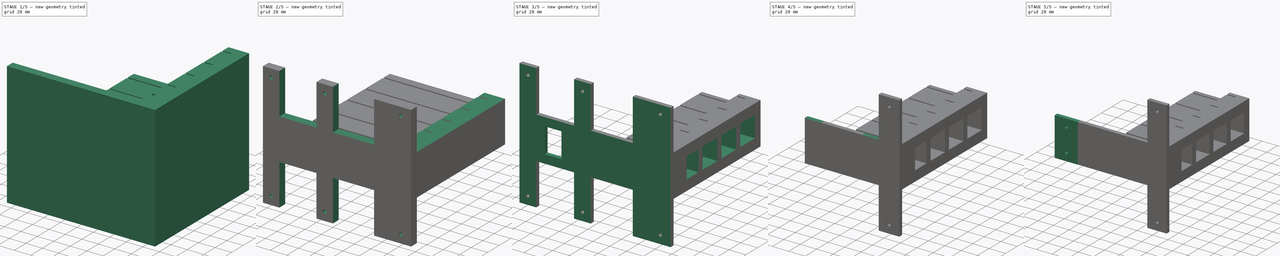
[diagram: build sequence overview — one tinted view per stage of 5, left to right]
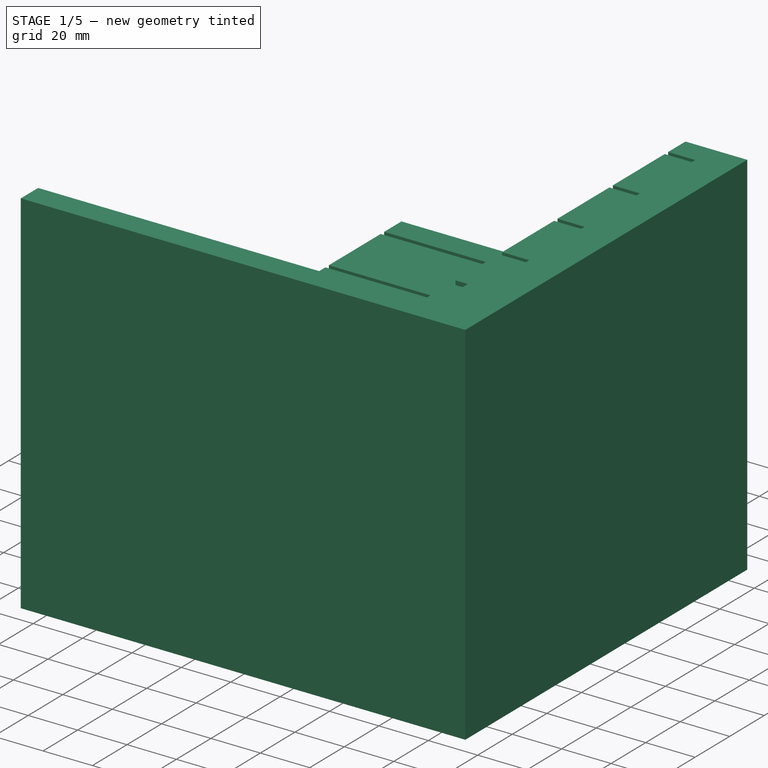
[diagram: stage 1 of 5 — iso view after this stage's code; geometry added in this stage tinted green]
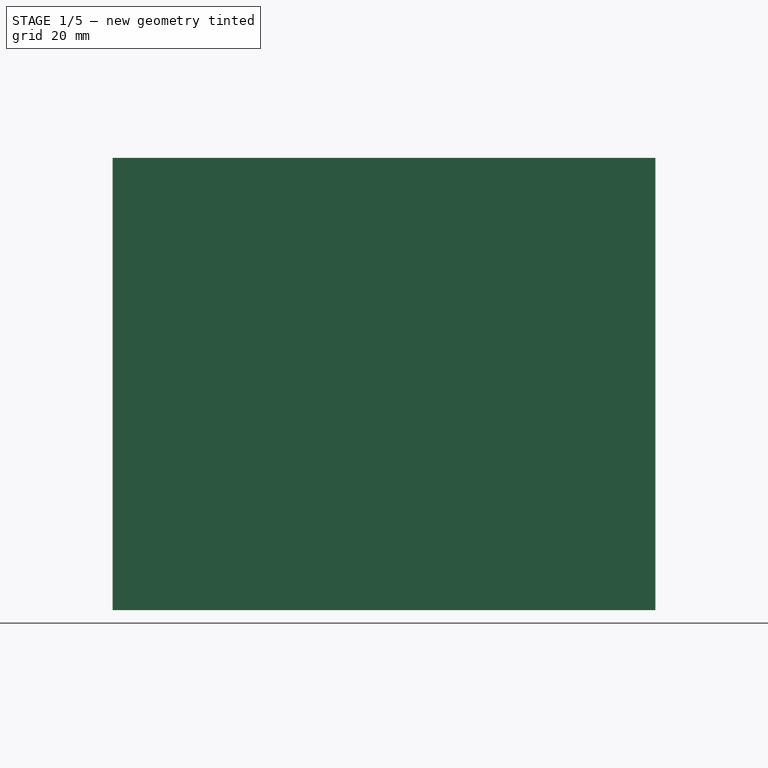
[diagram: stage 1 of 5 — front view after this stage's code; geometry added in this stage tinted green]
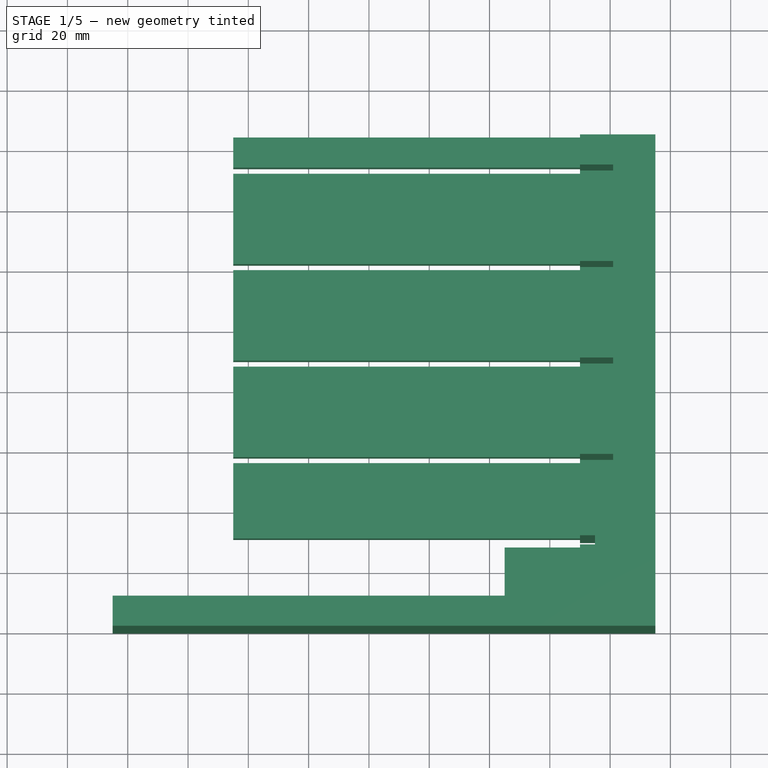
[diagram: stage 1 of 5 — top view after this stage's code; geometry added in this stage tinted green]
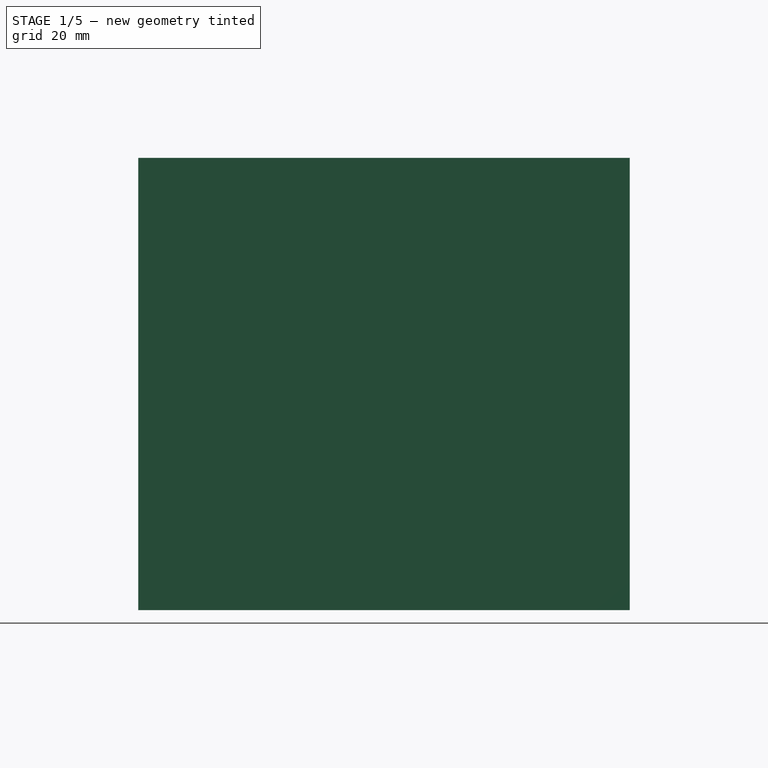
[diagram: stage 1 of 5 — right view after this stage's code; geometry added in this stage tinted green]
FCSTD DOCUMENT  (FreeCAD 0.19R24291 (Git))
Label: awe3_Final
License: All rights reserved
LicenseURL: http://en.wikipedia.org/wiki/All_rights_reserved
objects: Sketcher::SketchObject×18, PartDesign::Pocket×14, PartDesign::Pad×4, PartDesign::Body×1
note: 55 computed .brp shape members not serialized (recipe doc carries the construction recipe); baked Part::Feature solids carry a one-line shape summary decoded from their .brp

FEATURE [Sketcher::SketchObject] Sketch
  FullyConstrained = true
  MapMode = 5
  Support = -> [XY_Plane]
  sketch-geometry (26):
    g0: LineSegment StartX=-75 StartY=0 StartZ=0 EndX=75 EndY=0 EndZ=0
    g1: LineSegment StartX=-75 StartY=0 StartZ=0 EndX=-75 EndY=10 EndZ=0
    g2: LineSegment StartX=-75 StartY=10 StartZ=0 EndX=25 EndY=10 EndZ=0
    g3: LineSegment StartX=25 StartY=10 StartZ=0 EndX=25 EndY=27 EndZ=0
    g4: LineSegment StartX=25 StartY=27 StartZ=0 EndX=55 EndY=27 EndZ=0
    g5: LineSegment StartX=55 StartY=27 StartZ=0 EndX=55 EndY=30 EndZ=0
    g6: LineSegment StartX=55 StartY=30 StartZ=0 EndX=-65 EndY=30 EndZ=0
    g7: LineSegment StartX=-65 StartY=30 StartZ=0 EndX=-65 EndY=55 EndZ=0
    g8: LineSegment StartX=-65 StartY=55 StartZ=0 EndX=55 EndY=55 EndZ=0
    g9: LineSegment StartX=55 StartY=55 StartZ=0 EndX=55 EndY=57 EndZ=0
    g10: LineSegment StartX=55 StartY=57 StartZ=0 EndX=-65 EndY=57 EndZ=0
    g11: LineSegment StartX=-65 StartY=57 StartZ=0 EndX=-65 EndY=87 EndZ=0
    g12: LineSegment StartX=-65 StartY=87 StartZ=0 EndX=55 EndY=87 EndZ=0
    g13: LineSegment StartX=55 StartY=87 StartZ=0 EndX=55 EndY=89 EndZ=0
    g14: LineSegment StartX=55 StartY=89 StartZ=0 EndX=-65 EndY=89 EndZ=0
    g15: LineSegment StartX=-65 StartY=89 StartZ=0 EndX=-65 EndY=119 EndZ=0
    g16: LineSegment StartX=-65 StartY=119 StartZ=0 EndX=55 EndY=119 EndZ=0
    g17: LineSegment StartX=55 StartY=119 StartZ=0 EndX=55 EndY=121 EndZ=0
    g18: LineSegment StartX=55 StartY=121 StartZ=0 EndX=-65 EndY=121 EndZ=0
    g19: LineSegment StartX=-65 StartY=121 StartZ=0 EndX=-65 EndY=151 EndZ=0
    g20: LineSegment StartX=-65 StartY=151 StartZ=0 EndX=55 EndY=151 EndZ=0
    g21: LineSegment StartX=55 StartY=151 StartZ=0 EndX=55 EndY=153 EndZ=0
    g22: LineSegment StartX=55 StartY=153 StartZ=0 EndX=-65 EndY=153 EndZ=0
    g23: LineSegment StartX=-65 StartY=153 StartZ=0 EndX=-65 EndY=163 EndZ=0
    g24: LineSegment StartX=-65 StartY=163 StartZ=0 EndX=75 EndY=163 EndZ=0
    g25: LineSegment StartX=75 StartY=163 StartZ=0 EndX=75 EndY=0 EndZ=0
  constraints (77):
    c: PointOnObject(g0,g-1)
    c: DistanceX(g0,g0) = 150
    c: Symmetric(g0,g0,g-1)
    c: Coincident(g1,g0)
    c: Vertical(g1)
    c: DistanceY(g1,g1) = 10
    c: Coincident(g2,g1)
    c: Horizontal(g2)
    c: DistanceX(g2,g2) = 100
    c: Coincident(g3,g2)
    c: Vertical(g3)
    c: DistanceY(g3,g3) = 17
    c: Coincident(g4,g3)
    c: Horizontal(g4)
    c: DistanceX(g4,g4) = 30
    c: Coincident(g5,g4)
    c: Vertical(g5)
    c: DistanceY(g5,g5) = 3
    c: Coincident(g6,g5)
    c: Horizontal(g6)
    c: Coincident(g7,g6)
    c: Vertical(g7)
    c: DistanceY(g7,g7) = 25
    c: DistanceX(g6,g6) = 120
    c: Coincident(g8,g7)
    c: Horizontal(g8)
    c: Equal(g8,g6)
    c: Coincident(g9,g8)
    c: Vertical(g9)
    c: DistanceY(g9,g9) = 2
    c: Coincident(g10,g9)
    c: Horizontal(g10)
    c: Equal(g10,g8)
    c: Coincident(g11,g10)
    c: Vertical(g11)
    c: DistanceY(g11,g11) = 30
    c: Coincident(g12,g11)
    c: Horizontal(g12)
    c: Equal(g12,g10)
    c: Coincident(g13,g12)
    c: Vertical(g13)
    c: Equal(g13,g9)
    c: Coincident(g14,g13)
    c: Horizontal(g14)
    c: Equal(g14,g12)
    c: Coincident(g15,g14)
    c: Vertical(g15)
    c: Equal(g15,g11)
    c: Coincident(g16,g15)
    c: Horizontal(g16)
    c: Equal(g16,g14)
    c: Coincident(g17,g16)
    c: Vertical(g17)
    c: Equal(g17,g13)
    c: Coincident(g18,g17)
    c: Horizontal(g18)
    c: Equal(g18,g16)
    c: Coincident(g19,g18)
    c: Vertical(g19)
    c: Equal(g19,g15)
    c: Coincident(g20,g19)
    c: Horizontal(g20)
    c: Equal(g20,g18)
    c: Coincident(g21,g20)
    c: Vertical(g21)
    c: Equal(g21,g17)
    c: Coincident(g22,g21)
    c: Horizontal(g22)
    c: Equal(g22,g20)
    c: Coincident(g23,g22)
    c: Vertical(g23)
    c: Coincident(g24,g23)
    c: Horizontal(g24)
    c: DistanceY(g23,g23) = 10
    c: DistanceX(g24,g24) = 140
    c: Coincident(g25,g24)
    c: Coincident(g25,g0)
FEATURE [PartDesign::Pad] Pad
  Direction = (1,1,1)
  Length = 30
  Length2 = 100
  Profile = -> Sketch
  Type = 0
FEATURE [Sketcher::SketchObject] Sketch001
  FullyConstrained = true
  MapMode = 5
  Placement = pos=(75,6.8e-15,0) rot=(0.57735,0.57735,0.57735;2.0944rad)
  Support = -> [Pad]
  sketch-geometry (4):
    g0: LineSegment StartX=0 StartY=90 StartZ=0 EndX=10 EndY=90 EndZ=0
    g1: LineSegment StartX=0 StartY=90 StartZ=0 EndX=0 EndY=-60 EndZ=0
    g2: LineSegment StartX=10 StartY=90 StartZ=0 EndX=10 EndY=-60 EndZ=0
    g3: LineSegment StartX=10 StartY=-60 StartZ=0 EndX=0 EndY=-60 EndZ=0
  constraints (12):
    c: PointOnObject(g0,g-2)
    c: Horizontal(g0)
    c: DistanceX(g0,g0) = 10
    c: Coincident(g1,g0)
    c: Vertical(g1)
    c: Coincident(g2,g0)
    c: Vertical(g2)
    c: Coincident(g3,g2)
    c: Coincident(g3,g1)
    c: Horizontal(g3)
    c: DistanceY(g1,g1) = 150
    c: DistanceY(g-1,g0) = 90
FEATURE [PartDesign::Pad] Pad001
  BaseFeature = -> Pad
  Direction = (1,1,1)
  Length = 180
  Length2 = 100
  Profile = -> Sketch001
  Reversed = true
  Type = 0
FEATURE [Sketcher::SketchObject] Sketch002
  FullyConstrained = true
  MapMode = 5
  Placement = pos=(0,10,0) rot=(0,0.707107,0.707107;3.14159rad)
  Support = -> [Pad001]
  sketch-geometry (4):
    g0: LineSegment StartX=-75 StartY=90 StartZ=0 EndX=-75 EndY=-60 EndZ=0
    g1: LineSegment StartX=-75 StartY=-60 StartZ=0 EndX=-50 EndY=-60 EndZ=0
    g2: LineSegment StartX=-50 StartY=-60 StartZ=0 EndX=-50 EndY=90 EndZ=0
    g3: LineSegment StartX=-50 StartY=90 StartZ=0 EndX=-75 EndY=90 EndZ=0
  constraints (12):
    c: Vertical(g0)
    c: Coincident(g1,g0)
    c: Horizontal(g1)
    c: Coincident(g2,g1)
    c: Vertical(g2)
    c: Coincident(g3,g2)
    c: Coincident(g3,g0)
    c: Horizontal(g3)
    c: DistanceY(g0,g0) = 150
    c: DistanceX(g3,g3) = 25
    c: Distance(g-1,g1) = 60
    c: Distance(g-1,g0) = 75
FEATURE [PartDesign::Pad] Pad002
  BaseFeature = -> Pad001
  Direction = (1,1,1)
  Length = 153
  Length2 = 100
  Profile = -> Sketch002
  Type = 0
FEATURE [Sketcher::SketchObject] Sketch003
  FullyConstrained = true
  MapMode = 5
  Placement = pos=(0,1.98e-14,90) rot=(0,0,1;0rad)
  Support = -> [Pad002]
  sketch-geometry (20):
    g0: LineSegment StartX=50 StartY=27 StartZ=0 EndX=55 EndY=27 EndZ=0
    g1: LineSegment StartX=55 StartY=27 StartZ=0 EndX=55 EndY=30 EndZ=0
    g2: LineSegment StartX=55 StartY=30 StartZ=0 EndX=50 EndY=30 EndZ=0
    g3: LineSegment StartX=50 StartY=30 StartZ=0 EndX=50 EndY=27 EndZ=0
    g4: LineSegment StartX=50 StartY=57 StartZ=0 EndX=61 EndY=57 EndZ=0
    g5: LineSegment StartX=61 StartY=57 StartZ=0 EndX=61 EndY=55 EndZ=0
    g6: LineSegment StartX=61 StartY=55 StartZ=0 EndX=50 EndY=55 EndZ=0
    g7: LineSegment StartX=50 StartY=55 StartZ=0 EndX=50 EndY=57 EndZ=0
    g8: LineSegment StartX=50 StartY=89 StartZ=0 EndX=61 EndY=89 EndZ=0
    g9: LineSegment StartX=61 StartY=89 StartZ=0 EndX=61 EndY=87 EndZ=0
    g10: LineSegment StartX=61 StartY=87 StartZ=0 EndX=50 EndY=87 EndZ=0
    g11: LineSegment StartX=50 StartY=87 StartZ=0 EndX=50 EndY=89 EndZ=0
    g12: LineSegment StartX=50 StartY=121 StartZ=0 EndX=61 EndY=121 EndZ=0
    g13: LineSegment StartX=61 StartY=121 StartZ=0 EndX=61 EndY=119 EndZ=0
    g14: LineSegment StartX=61 StartY=119 StartZ=0 EndX=50 EndY=119 EndZ=0
    g15: LineSegment StartX=50 StartY=119 StartZ=0 EndX=50 EndY=121 EndZ=0
    g16: LineSegment StartX=50 StartY=153 StartZ=0 EndX=61 EndY=153 EndZ=0
    g17: LineSegment StartX=61 StartY=153 StartZ=0 EndX=61 EndY=151 EndZ=0
    g18: LineSegment StartX=61 StartY=151 StartZ=0 EndX=50 EndY=151 EndZ=0
    g19: LineSegment StartX=50 StartY=151 StartZ=0 EndX=50 EndY=153 EndZ=0
  constraints (60):
    c: Horizontal(g0)
    c: Distance(g0,g-1) = 27
    c: Distance(g0,g-2) = 50
    c: Coincident(g1,g0)
    c: Vertical(g1)
    c: Coincident(g2,g1)
    c: Horizontal(g2)
    c: Coincident(g3,g2)
    c: Coincident(g3,g0)
    c: DistanceY(g1,g1) = 3
    c: DistanceX(g2,g2) = 5
    c: DistanceX(g0,g0) = 5
    c: Coincident(g4,g5)
    c: Coincident(g5,g6)
    c: Coincident(g6,g7)
    c: Coincident(g7,g4)
    c: Horizontal(g4)
    c: Horizontal(g6)
    c: Vertical(g5)
    c: Vertical(g7)
    c: Coincident(g8,g9)
    c: Coincident(g9,g10)
    c: Coincident(g10,g11)
    c: Coincident(g11,g8)
    c: Horizontal(g8)
    c: Horizontal(g10)
    c: Vertical(g9)
    c: Vertical(g11)
    c: Coincident(g12,g13)
    c: Coincident(g13,g14)
    c: Coincident(g14,g15)
    c: Coincident(g15,g12)
    c: Horizontal(g12)
    c: Horizontal(g14)
    c: Vertical(g13)
    c: Vertical(g15)
    c: Coincident(g16,g17)
    c: Coincident(g17,g18)
    c: Coincident(g18,g19)
    c: Coincident(g19,g16)
    c: Horizontal(g16)
    c: Horizontal(g18)
    c: Vertical(g17)
    c: Vertical(g19)
    c: Equal(g10,g4)
    c: Equal(g14,g8)
    c: Equal(g18,g12)
    c: Distance(g6,g-2) = 50
    c: Distance(g10,g-2) = 50
    c: Distance(g14,g-2) = 50
    c: Distance(g18,g-2) = 50
    c: DistanceY(g5,g5) = 2
    c: Distance(g5,g-1) = 55
    c: Distance(g9,g4) = 30
    c: Equal(g13,g5)
    c: Equal(g17,g5)
    c: Equal(g9,g5)
    c: Distance(g17,g12) = 30
    c: Distance(g13,g8) = 30
    c: DistanceX(g6,g6) = 11
FEATURE [PartDesign::Pocket] Pocket
  BaseFeature = -> Pad002
  Length = 150
  Length2 = 100
  Profile = -> Sketch003
  Type = 0
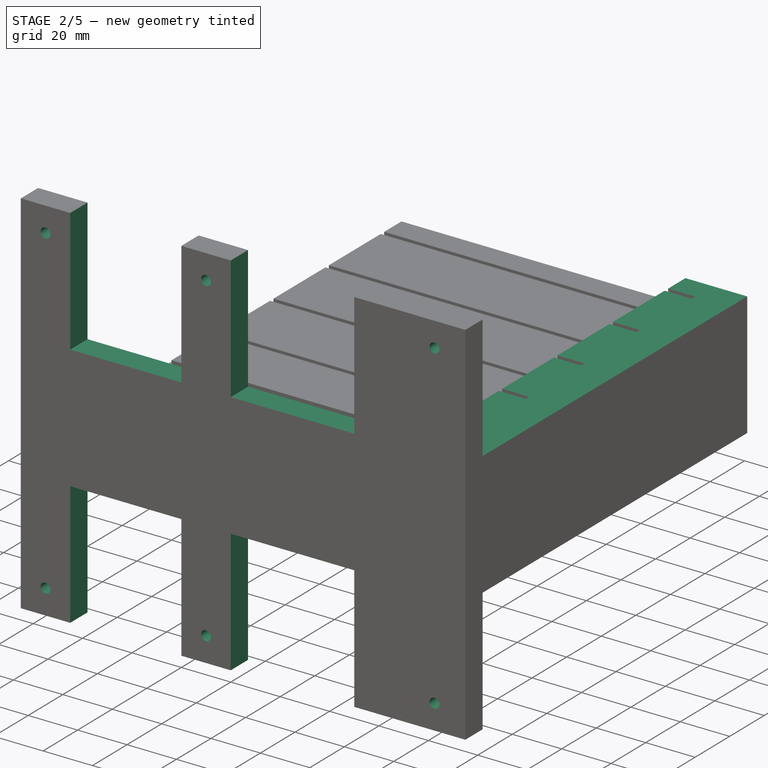
[diagram: stage 2 of 5 — iso view after this stage's code; geometry added in this stage tinted green]
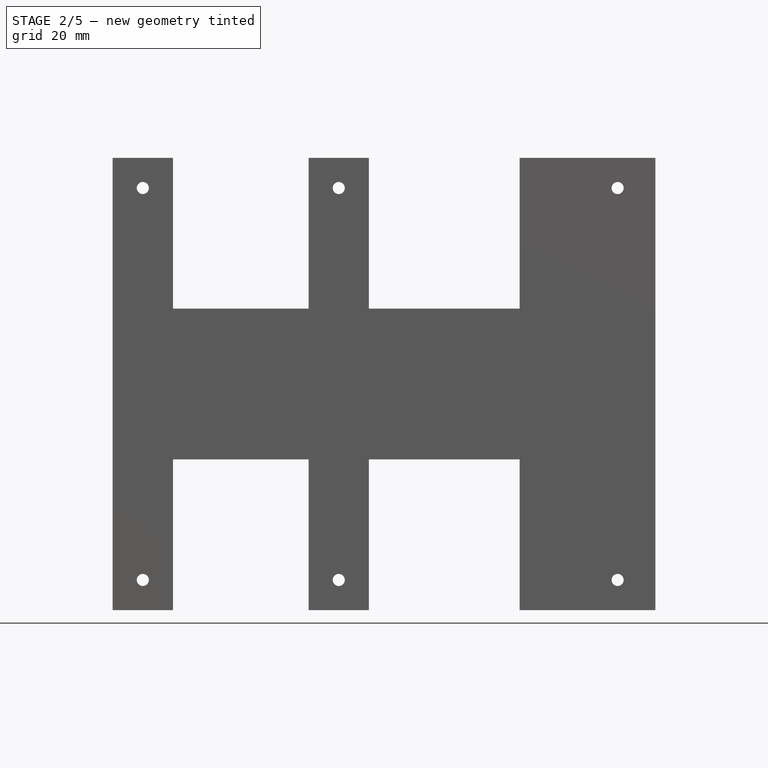
[diagram: stage 2 of 5 — front view after this stage's code; geometry added in this stage tinted green]
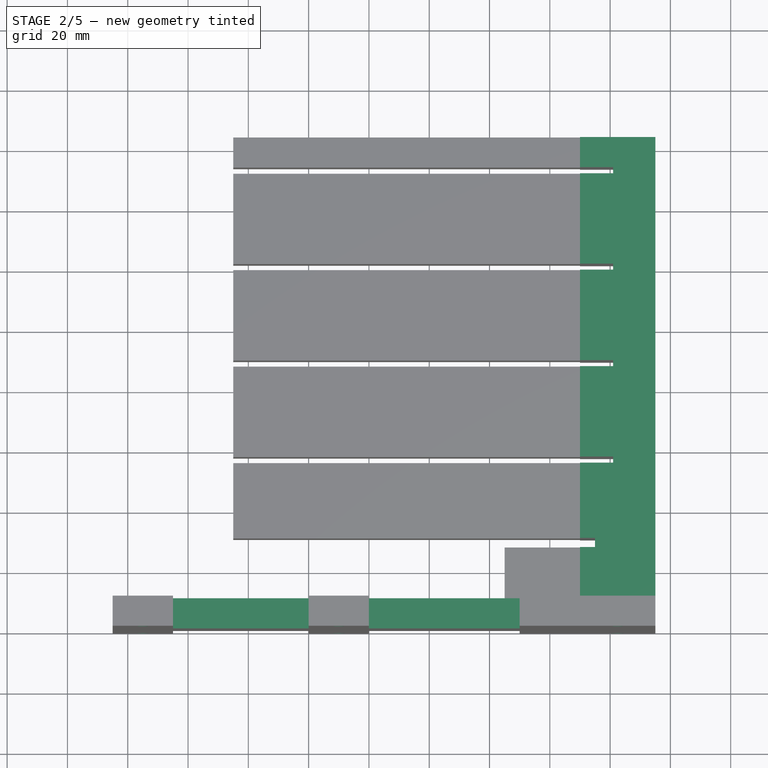
[diagram: stage 2 of 5 — top view after this stage's code; geometry added in this stage tinted green]
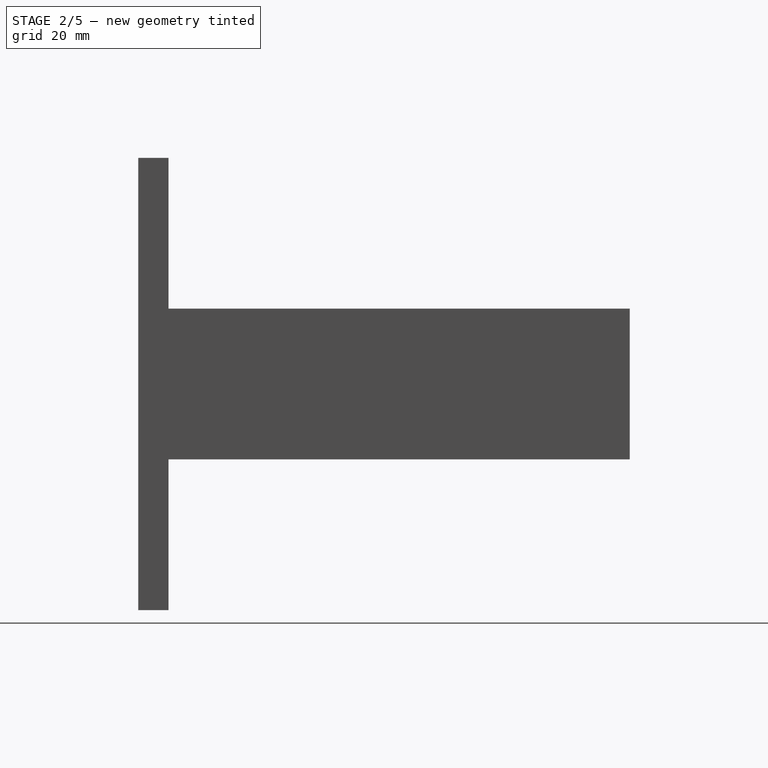
[diagram: stage 2 of 5 — right view after this stage's code; geometry added in this stage tinted green]
FEATURE [Sketcher::SketchObject] Sketch006
  AttachmentOffset = pos=(0,0,10) rot=(0,0,1;0rad)
  FullyConstrained = true
  MapMode = 5
  Placement = pos=(49,0,0) rot=(0.57735,-0.57735,-0.57735;2.0944rad)
  sketch-geometry (8):
    g0: LineSegment StartX=-163 StartY=90 StartZ=0 EndX=-10 EndY=90 EndZ=0
    g1: LineSegment StartX=-10 StartY=90 StartZ=0 EndX=-10 EndY=40 EndZ=0
    g2: LineSegment StartX=-10 StartY=40 StartZ=0 EndX=-163 EndY=40 EndZ=0
    g3: LineSegment StartX=-163 StartY=40 StartZ=0 EndX=-163 EndY=90 EndZ=0
    g4: LineSegment StartX=-163 StartY=-60 StartZ=0 EndX=-10 EndY=-60 EndZ=0
    g5: LineSegment StartX=-10 StartY=-60 StartZ=0 EndX=-10 EndY=-10 EndZ=0
    g6: LineSegment StartX=-10 StartY=-10 StartZ=0 EndX=-163 EndY=-10 EndZ=0
    g7: LineSegment StartX=-163 StartY=-10 StartZ=0 EndX=-163 EndY=-60 EndZ=0
  constraints (24):
    c: Coincident(g0,g1)
    c: Coincident(g1,g2)
    c: Coincident(g2,g3)
    c: Coincident(g3,g0)
    c: Horizontal(g0)
    c: Horizontal(g2)
    c: Vertical(g1)
    c: Vertical(g3)
    c: Coincident(g4,g5)
    c: Coincident(g5,g6)
    c: Coincident(g6,g7)
    c: Coincident(g7,g4)
    c: Horizontal(g4)
    c: Horizontal(g6)
    c: Vertical(g5)
    c: Vertical(g7)
    c: DistanceY(g3,g3) = 50
    c: DistanceY(g7,g7) = 50
    c: Distance(g-1,g4) = 60
    c: Distance(g-1,g0) = 90
    c: Distance(g-1,g5) = 10
    c: DistanceX(g0,g0) = 153
    c: DistanceX(g6,g6) = 153
    c: Distance(g-1,g1) = 10
FEATURE [Sketcher::SketchObject] Sketch007
  FullyConstrained = true
  MapMode = 5
  Placement = pos=(0,10,0) rot=(0,0.707107,0.707107;3.14159rad)
  sketch-geometry (37):
    g0: LineSegment StartX=-75 StartY=90 StartZ=0 EndX=105 EndY=90 EndZ=0
    g1: LineSegment StartX=105 StartY=90 StartZ=0 EndX=105 EndY=-60 EndZ=0
    g2: LineSegment StartX=105 StartY=-60 StartZ=0 EndX=-75 EndY=-60 EndZ=0
    g3: LineSegment StartX=-75 StartY=-60 StartZ=0 EndX=-75 EndY=90 EndZ=0
    g4: LineSegment StartX=20 StartY=90 StartZ=0 EndX=20 EndY=-60 EndZ=0
    g5: LineSegment StartX=40 StartY=90 StartZ=0 EndX=40 EndY=-60 EndZ=0
    g6: LineSegment StartX=85 StartY=90 StartZ=0 EndX=85 EndY=-60 EndZ=0
    g7: GeomPoint X=-40 Y=80 Z=0
    g8: GeomPoint X=30 Y=80 Z=0
    g9: GeomPoint X=95 Y=80 Z=0
    g10: LineSegment StartX=-75 StartY=40 StartZ=0 EndX=105 EndY=40 EndZ=0
    g11: LineSegment StartX=-75 StartY=-10 StartZ=0 EndX=105 EndY=-10 EndZ=0
    g12: LineSegment StartX=-30 StartY=90 StartZ=0 EndX=-30 EndY=-60 EndZ=0
    g13: GeomPoint X=-30 Y=40 Z=0
    g14: GeomPoint X=20 Y=40 Z=0
    g15: GeomPoint X=40 Y=40 Z=0
    g16: GeomPoint X=85 Y=40 Z=0
    g17: LineSegment StartX=-30 StartY=90 StartZ=0 EndX=-30 EndY=40 EndZ=0
    g18: LineSegment StartX=-30 StartY=40 StartZ=0 EndX=20 EndY=40 EndZ=0
    g19: LineSegment StartX=20 StartY=40 StartZ=0 EndX=20 EndY=90 EndZ=0
    g20: LineSegment StartX=-30 StartY=90 StartZ=0 EndX=20 EndY=90 EndZ=0
    g21: LineSegment StartX=40 StartY=90 StartZ=0 EndX=40 EndY=40 EndZ=0
    g22: LineSegment StartX=40 StartY=40 StartZ=0 EndX=85 EndY=40 EndZ=0
    g23: LineSegment StartX=85 StartY=40 StartZ=0 EndX=85 EndY=90 EndZ=0
    g24: LineSegment StartX=85 StartY=90 StartZ=0 EndX=40 EndY=90 EndZ=0
    g25: GeomPoint X=-30 Y=-10 Z=0
    g26: GeomPoint X=20 Y=-10 Z=0
    g27: GeomPoint X=40 Y=-10 Z=0
    g28: GeomPoint X=85 Y=-10 Z=0
    g29: LineSegment StartX=-30 StartY=-10 StartZ=0 EndX=-30 EndY=-60 EndZ=0
    g30: LineSegment StartX=-30 StartY=-60 StartZ=0 EndX=20 EndY=-60 EndZ=0
    g31: LineSegment StartX=20 StartY=-60 StartZ=0 EndX=20 EndY=-10 EndZ=0
    g32: LineSegment StartX=20 StartY=-10 StartZ=0 EndX=-30 EndY=-10 EndZ=0
    g33: LineSegment StartX=40 StartY=-10 StartZ=0 EndX=40 EndY=-60 EndZ=0
    g34: LineSegment StartX=40 StartY=-60 StartZ=0 EndX=85 EndY=-60 EndZ=0
    g35: LineSegment StartX=85 StartY=-60 StartZ=0 EndX=85 EndY=-10 EndZ=0
    g36: LineSegment StartX=85 StartY=-10 StartZ=0 EndX=40 EndY=-10 EndZ=0
  constraints (90):
    c: Coincident(g0,g1)
    c: Coincident(g1,g2)
    c: Coincident(g2,g3)
    c: Coincident(g3,g0)
    c: Horizontal(g0)
    c: Horizontal(g2)
    c: Vertical(g1)
    c: Vertical(g3)
    c: DistanceY(g1,g1) = 150
    c: DistanceX(g0,g0) = 180
    c: Distance(g-1,g2) = 60
    c: Distance(g-1,g3) = 75
    c: PointOnObject(g4,g0)
    c: PointOnObject(g4,g2)
    c: Vertical(g4)
    c: PointOnObject(g5,g0)
    c: PointOnObject(g5,g2)
    c: Vertical(g5)
    c: PointOnObject(g6,g0)
    c: PointOnObject(g6,g2)
    c: Vertical(g6)
    c: Distance(g7,g0) = 10
    c: Distance(g7,g3) = 35
    c: Distance(g9,g1) = 10
    c: Distance(g9,g0) = 10
    c: Distance(g8,g0) = 10
    c: Distance(g8,g7) = 70
    c: PointOnObject(g10,g3)
    c: PointOnObject(g10,g1)
    c: Horizontal(g10)
    c: PointOnObject(g11,g3)
    c: PointOnObject(g11,g1)
    c: Horizontal(g11)
    c: Distance(g2,g11) = 50
    c: Distance(g0,g10) = 50
    c: Distance(g8,g4) = 10
    c: Distance(g8,g5) = 10
    c: Distance(g9,g6) = 10
    c: PointOnObject(g12,g0)
    c: PointOnObject(g12,g2)
    c: Vertical(g12)
    c: Distance(g7,g12) = 10
    c: PointOnObject(g13,g10)
    c: PointOnObject(g14,g10)
    c: PointOnObject(g15,g10)
    c: PointOnObject(g16,g10)
    c: PointOnObject(g13,g12)
    c: PointOnObject(g14,g4)
    c: PointOnObject(g15,g5)
    c: PointOnObject(g16,g6)
    c: Coincident(g17,g12)
    c: Coincident(g17,g13)
    c: Coincident(g18,g17)
    c: Coincident(g18,g14)
    c: Coincident(g19,g18)
    c: Coincident(g19,g4)
    c: Coincident(g20,g17)
    c: Coincident(g20,g19)
    c: Coincident(g21,g5)
    c: Coincident(g21,g15)
    c: Coincident(g22,g21)
    c: Coincident(g22,g16)
    c: Coincident(g23,g22)
    c: Coincident(g23,g6)
    c: Coincident(g24,g23)
    c: Coincident(g24,g21)
    c: PointOnObject(g25,g11)
    c: PointOnObject(g26,g11)
    c: PointOnObject(g27,g11)
    c: PointOnObject(g28,g11)
    c: PointOnObject(g25,g12)
    c: PointOnObject(g26,g4)
    c: PointOnObject(g27,g5)
    c: PointOnObject(g28,g6)
    c: Coincident(g29,g25)
    c: Coincident(g29,g12)
    c: Coincident(g30,g29)
    c: Coincident(g30,g4)
    c: Coincident(g31,g30)
    c: Coincident(g31,g26)
    c: Coincident(g32,g31)
    c: Coincident(g32,g29)
    c: Coincident(g33,g27)
    c: Coincident(g33,g5)
    c: Coincident(g34,g33)
    c: Coincident(g34,g6)
    c: Coincident(g35,g34)
    c: Coincident(g35,g28)
    c: Coincident(g36,g35)
    c: Coincident(g36,g33)
FEATURE [Sketcher::SketchObject] Sketch004
  FullyConstrained = true
  MapMode = 5
  Placement = pos=(0,10,0) rot=(0,0.707107,0.707107;3.14159rad)
  Support = -> [Pocket]
  sketch-geometry (17):
    g0: GeomPoint X=-62.5 Y=80 Z=0
    g1: GeomPoint X=30 Y=80 Z=0
    g2: GeomPoint X=95 Y=80 Z=0
    g3: GeomPoint X=-62.5 Y=-50 Z=0
    g4: GeomPoint X=30 Y=-50 Z=0
    g5: GeomPoint X=95 Y=-50 Z=0
    g6: LineSegment StartX=-75 StartY=90 StartZ=0 EndX=105 EndY=90 EndZ=0
    g7: LineSegment StartX=105 StartY=90 StartZ=0 EndX=105 EndY=-60 EndZ=0
    g8: LineSegment StartX=105 StartY=-60 StartZ=0 EndX=-75 EndY=-60 EndZ=0
    g9: LineSegment StartX=-75 StartY=-60 StartZ=0 EndX=-75 EndY=90 EndZ=0
    g10: LineSegment StartX=-50 StartY=90 StartZ=0 EndX=-50 EndY=-60 EndZ=0
    g11: Circle CenterX=-62.5 CenterY=80 CenterZ=0 NormalX=0 NormalY=0 NormalZ=1 AngleXU=0 Radius=2
    g12: Circle CenterX=30 CenterY=80 CenterZ=0 NormalX=0 NormalY=0 NormalZ=1 AngleXU=0 Radius=2
    g13: Circle CenterX=95 CenterY=80 CenterZ=0 NormalX=0 NormalY=0 NormalZ=1 AngleXU=0 Radius=2
    g14: Circle CenterX=-62.5 CenterY=-50 CenterZ=0 NormalX=0 NormalY=0 NormalZ=1 AngleXU=0 Radius=2
    g15: Circle CenterX=30 CenterY=-50 CenterZ=0 NormalX=0 NormalY=0 NormalZ=1 AngleXU=0 Radius=2
    g16: Circle CenterX=95 CenterY=-50 CenterZ=0 NormalX=0 NormalY=0 NormalZ=1 AngleXU=0 Radius=2
  constraints (40):
    c: Coincident(g6,g7)
    c: Coincident(g7,g8)
    c: Coincident(g8,g9)
    c: Coincident(g9,g6)
    c: Horizontal(g6)
    c: Horizontal(g8)
    c: Vertical(g7)
    c: Vertical(g9)
    c: DistanceY(g9,g9) = 150
    c: DistanceX(g8,g8) = 180
    c: Distance(g-1,g8) = 60
    c: Distance(g-1,g7) = 105
    c: Distance(g0,g6) = 10
    c: Distance(g1,g6) = 10
    c: Distance(g2,g6) = 10
    c: Distance(g2,g7) = 10
    c: PointOnObject(g10,g6)
    c: PointOnObject(g10,g8)
    c: Vertical(g10)
    c: Distance(g-1,g10) = 50
    c: Distance(g3,g8) = 10
    c: Distance(g4,g8) = 10
    c: Distance(g5,g7) = 10
    c: Distance(g5,g8) = 10
    c: Distance(g0,g1) = 92.5
    c: Distance(g3,g4) = 92.5
    c: Coincident(g11,g0)
    c: Coincident(g12,g1)
    c: Coincident(g13,g2)
    c: Coincident(g14,g3)
    c: Coincident(g15,g4)
    c: Coincident(g16,g5)
    c: Diameter(g16) = 4
    c: Diameter(g15) = 4
    c: Diameter(g14) = 4
    c: Diameter(g13) = 4
    c: Diameter(g12) = 4
    c: Diameter(g11) = 4
    c: Distance(g14,g9) = 12.5
    c: Distance(g11,g9) = 12.5
FEATURE [PartDesign::Pocket] Pocket001
  BaseFeature = -> Pocket
  Length = 35
  Length2 = 100
  Profile = -> Sketch006
  Type = 0
FEATURE [PartDesign::Pocket] Pocket002
  BaseFeature = -> Pocket001
  Length = 35
  Length2 = 100
  Profile = -> Sketch007
  Type = 0
FEATURE [PartDesign::Pocket] Pocket003
  BaseFeature = -> Pocket002
  Length = 5
  Length2 = 100
  Profile = -> Sketch004
  Type = 1
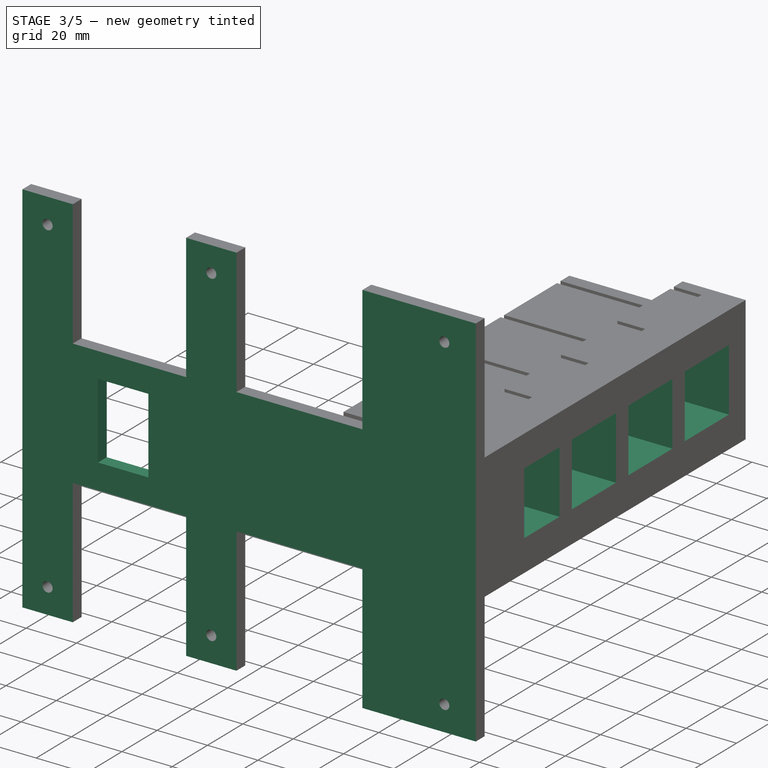
[diagram: stage 3 of 5 — iso view after this stage's code; geometry added in this stage tinted green]
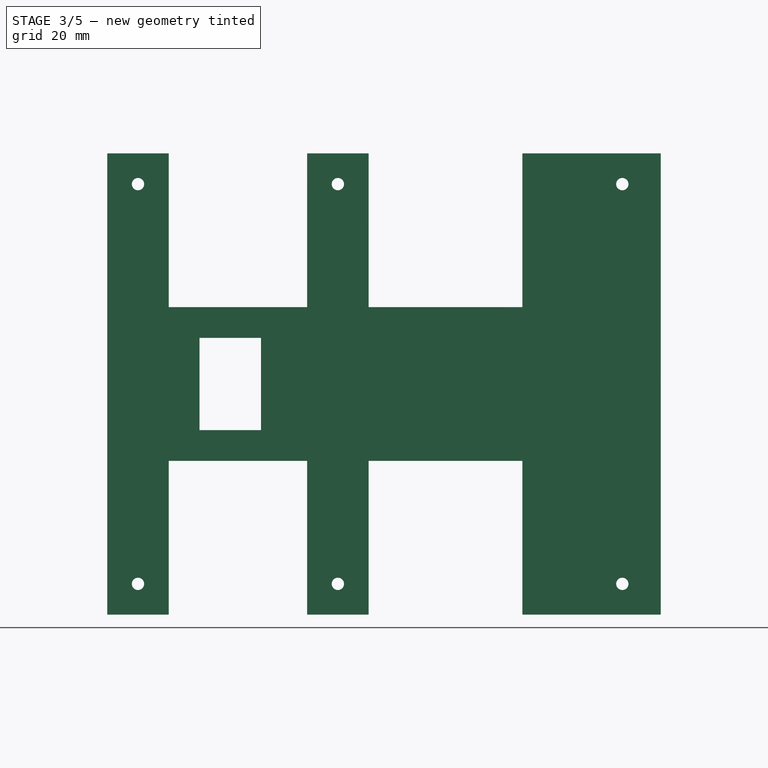
[diagram: stage 3 of 5 — front view after this stage's code; geometry added in this stage tinted green]
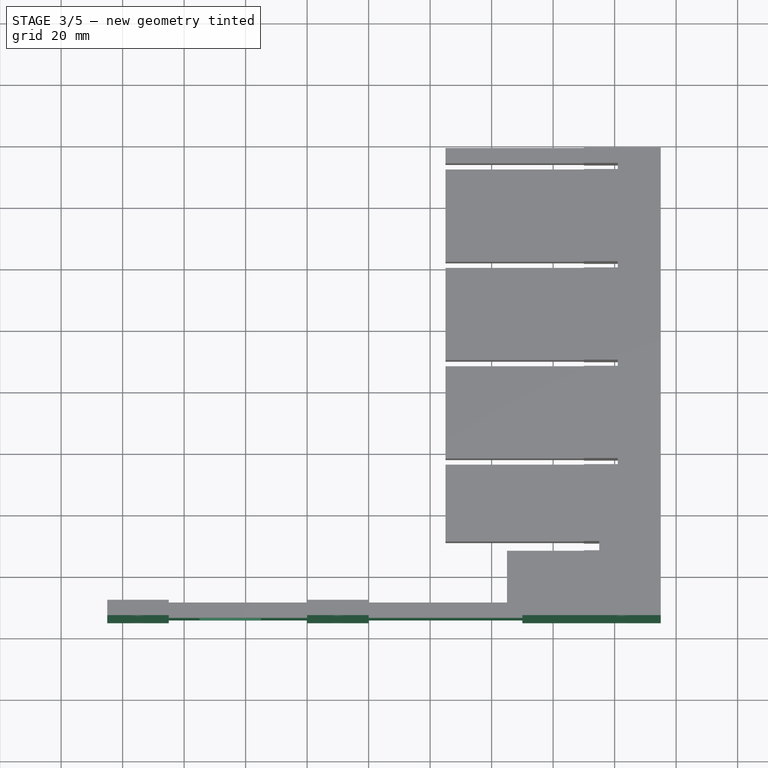
[diagram: stage 3 of 5 — top view after this stage's code; geometry added in this stage tinted green]
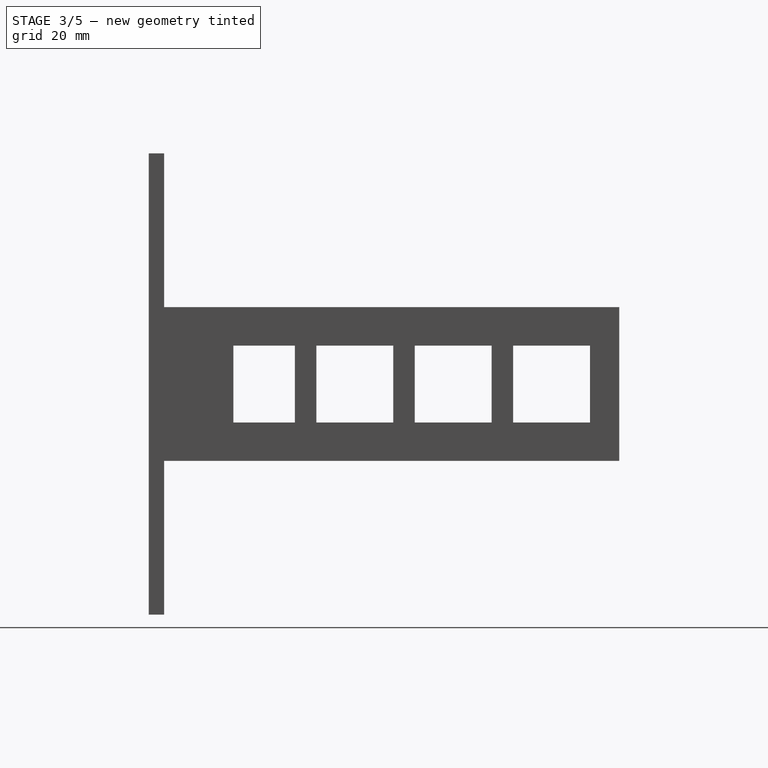
[diagram: stage 3 of 5 — right view after this stage's code; geometry added in this stage tinted green]
FEATURE [Sketcher::SketchObject] Sketch008
  FullyConstrained = true
  MapMode = 5
  Placement = pos=(-65,0,0) rot=(0.57735,-0.57735,-0.57735;2.0944rad)
  Support = -> [Pocket003]
  sketch-geometry (48):
    g0: LineSegment StartX=-151 StartY=30 StartZ=0 EndX=-121 EndY=30 EndZ=0
    g1: LineSegment StartX=-121 StartY=30 StartZ=0 EndX=-121 EndY=0 EndZ=0
    g2: LineSegment StartX=-121 StartY=0 StartZ=0 EndX=-151 EndY=0 EndZ=0
    g3: LineSegment StartX=-151 StartY=0 StartZ=0 EndX=-151 EndY=30 EndZ=0
    g4: LineSegment StartX=-119 StartY=30 StartZ=0 EndX=-89 EndY=30 EndZ=0
    g5: LineSegment StartX=-89 StartY=30 StartZ=0 EndX=-89 EndY=0 EndZ=0
    g6: LineSegment StartX=-89 StartY=0 StartZ=0 EndX=-119 EndY=0 EndZ=0
    g7: LineSegment StartX=-119 StartY=0 StartZ=0 EndX=-119 EndY=30 EndZ=0
    g8: LineSegment StartX=-87 StartY=30 StartZ=0 EndX=-57 EndY=30 EndZ=0
    g9: LineSegment StartX=-57 StartY=30 StartZ=0 EndX=-57 EndY=0 EndZ=0
    g10: LineSegment StartX=-57 StartY=0 StartZ=0 EndX=-87 EndY=0 EndZ=0
    g11: LineSegment StartX=-87 StartY=0 StartZ=0 EndX=-87 EndY=30 EndZ=0
    g12: LineSegment StartX=-55 StartY=30 StartZ=0 EndX=-30 EndY=30 EndZ=0
    g13: LineSegment StartX=-30 StartY=30 StartZ=0 EndX=-30 EndY=0 EndZ=0
    g14: LineSegment StartX=-30 StartY=0 StartZ=0 EndX=-55 EndY=0 EndZ=0
    g15: LineSegment StartX=-55 StartY=0 StartZ=0 EndX=-55 EndY=30 EndZ=0
    g16: LineSegment StartX=-148.5 StartY=27.5 StartZ=0 EndX=-123.5 EndY=27.5 EndZ=0
    g17: LineSegment StartX=-123.5 StartY=27.5 StartZ=0 EndX=-123.5 EndY=2.5 EndZ=0
    g18: LineSegment StartX=-123.5 StartY=2.5 StartZ=0 EndX=-148.5 EndY=2.5 EndZ=0
    g19: LineSegment StartX=-148.5 StartY=2.5 StartZ=0 EndX=-148.5 EndY=27.5 EndZ=0
    g20: LineSegment StartX=-116.5 StartY=27.5 StartZ=0 EndX=-91.5 EndY=27.5 EndZ=0
    g21: LineSegment StartX=-91.5 StartY=27.5 StartZ=0 EndX=-91.5 EndY=2.5 EndZ=0
    g22: LineSegment StartX=-91.5 StartY=2.5 StartZ=0 EndX=-116.5 EndY=2.5 EndZ=0
    g23: LineSegment StartX=-116.5 StartY=2.5 StartZ=0 EndX=-116.5 EndY=27.5 EndZ=0
    g24: LineSegment StartX=-84.5 StartY=27.5 StartZ=0 EndX=-59.5 EndY=27.5 EndZ=0
    g25: LineSegment StartX=-59.5 StartY=27.5 StartZ=0 EndX=-59.5 EndY=2.5 EndZ=0
    g26: LineSegment StartX=-59.5 StartY=2.5 StartZ=0 EndX=-84.5 EndY=2.5 EndZ=0
    g27: LineSegment StartX=-84.5 StartY=2.5 StartZ=0 EndX=-84.5 EndY=27.5 EndZ=0
    g28: LineSegment StartX=-52.5 StartY=27.5 StartZ=0 EndX=-32.5 EndY=27.5 EndZ=0
    g29: LineSegment StartX=-32.5 StartY=27.5 StartZ=0 EndX=-32.5 EndY=2.5 EndZ=0
    g30: LineSegment StartX=-32.5 StartY=2.5 StartZ=0 EndX=-52.5 EndY=2.5 EndZ=0
    g31: LineSegment StartX=-52.5 StartY=2.5 StartZ=0 EndX=-52.5 EndY=27.5 EndZ=0
    g32: LineSegment StartX=-151 StartY=30 StartZ=0 EndX=-121 EndY=0 EndZ=0
    g33: LineSegment StartX=-121 StartY=30 StartZ=0 EndX=-151 EndY=0 EndZ=0
    g34: LineSegment StartX=-119 StartY=30 StartZ=0 EndX=-89 EndY=0 EndZ=0
    g35: LineSegment StartX=-89 StartY=30 StartZ=0 EndX=-119 EndY=0 EndZ=0
    g36: LineSegment StartX=-87 StartY=30 StartZ=0 EndX=-57 EndY=0 EndZ=0
    g37: LineSegment StartX=-57 StartY=30 StartZ=0 EndX=-87 EndY=0 EndZ=0
    g38: LineSegment StartX=-55 StartY=30 StartZ=0 EndX=-30 EndY=0 EndZ=0
    g39: LineSegment StartX=-30 StartY=30 StartZ=0 EndX=-55 EndY=0 EndZ=0
    g40: GeomPoint X=-136 Y=15 Z=0
    g41: GeomPoint X=-104 Y=15 Z=0
    g42: GeomPoint X=-72 Y=15 Z=0
    g43: GeomPoint X=-42.5 Y=15 Z=0
    g44: LineSegment StartX=-163 StartY=40 StartZ=0 EndX=-158 EndY=40 EndZ=0
    g45: LineSegment StartX=-158 StartY=40 StartZ=0 EndX=-158 EndY=-10 EndZ=0
    g46: LineSegment StartX=-158 StartY=-10 StartZ=0 EndX=-163 EndY=-10 EndZ=0
    g47: LineSegment StartX=-163 StartY=-10 StartZ=0 EndX=-163 EndY=40 EndZ=0
  constraints (128):
    c: Coincident(g0,g1)
    c: Coincident(g1,g2)
    c: Coincident(g2,g3)
    c: Coincident(g3,g0)
    c: Horizontal(g0)
    c: Horizontal(g2)
    c: Vertical(g1)
    c: Vertical(g3)
    c: PointOnObject(g1,g-1)
    c: Coincident(g4,g5)
    c: Coincident(g5,g6)
    c: Coincident(g6,g7)
    c: Coincident(g7,g4)
    c: Horizontal(g4)
    c: Horizontal(g6)
    c: Vertical(g5)
    c: Vertical(g7)
    c: PointOnObject(g5,g-1)
    c: Coincident(g8,g9)
    c: Coincident(g9,g10)
    c: Coincident(g10,g11)
    c: Coincident(g11,g8)
    c: Horizontal(g8)
    c: Horizontal(g10)
    c: Vertical(g9)
    c: Vertical(g11)
    c: PointOnObject(g9,g-1)
    c: Coincident(g12,g13)
    c: Coincident(g13,g14)
    c: Coincident(g14,g15)
    c: Coincident(g15,g12)
    c: Horizontal(g12)
    c: Horizontal(g14)
    c: Vertical(g13)
    c: Vertical(g15)
    c: PointOnObject(g13,g-1)
    c: DistanceY(g13,g13) = 30
    c: DistanceY(g9,g9) = 30
    c: DistanceY(g5,g5) = 30
    c: DistanceY(g1,g1) = 30
    c: DistanceX(g0,g0) = 30
    c: DistanceX(g4,g4) = 30
    c: DistanceX(g8,g8) = 30
    c: DistanceX(g12,g12) = 25
    c: Distance(g-1,g13) = 30
    c: Distance(g-1,g9) = 57
    c: Distance(g-1,g5) = 89
    c: Distance(g-1,g1) = 121
    c: Coincident(g16,g17)
    c: Coincident(g17,g18)
    c: Coincident(g18,g19)
    c: Coincident(g19,g16)
    c: Horizontal(g16)
    c: Horizontal(g18)
    c: Vertical(g17)
    c: Vertical(g19)
    c: Coincident(g20,g21)
    c: Coincident(g21,g22)
    c: Coincident(g22,g23)
    c: Coincident(g23,g20)
    c: Horizontal(g20)
    c: Horizontal(g22)
    c: Vertical(g21)
    c: Vertical(g23)
    c: Coincident(g24,g25)
    c: Coincident(g25,g26)
    c: Coincident(g26,g27)
    c: Coincident(g27,g24)
    c: Horizontal(g24)
    c: Horizontal(g26)
    c: Vertical(g25)
    c: Vertical(g27)
    c: Coincident(g28,g29)
    c: Coincident(g29,g30)
    c: Coincident(g30,g31)
    c: Coincident(g31,g28)
    c: Horizontal(g28)
    c: Horizontal(g30)
    c: Vertical(g29)
    c: Vertical(g31)
    c: Coincident(g32,g0)
    c: Coincident(g32,g1)
    c: Coincident(g33,g0)
    c: Coincident(g33,g2)
    c: Coincident(g34,g4)
    c: Coincident(g34,g5)
    c: Coincident(g35,g4)
    c: Coincident(g35,g6)
    c: Coincident(g36,g8)
    c: Coincident(g36,g9)
    c: Coincident(g37,g8)
    c: Coincident(g37,g10)
    c: Coincident(g38,g12)
    c: Coincident(g38,g13)
    c: Coincident(g39,g12)
    c: Coincident(g39,g14)
    c: PointOnObject(g40,g32)
    c: PointOnObject(g41,g34)
    c: PointOnObject(g42,g36)
    c: PointOnObject(g43,g38)
    c: PointOnObject(g40,g33)
    c: PointOnObject(g41,g35)
    c: PointOnObject(g42,g37)
    c: PointOnObject(g43,g39)
    c: DistanceY(g19,g19) = 25
    c: Distance(g18) = 25
    c: Distance(g22) = 25
    c: Distance(g23) = 25
    c: Distance(g27) = 25
    c: Distance(g26) = 25
    c: Distance(g31) = 25
    c: Distance(g30) = 20
    c: Coincident(g44,g45)
    c: Coincident(g45,g46)
    c: Coincident(g46,g47)
    c: Coincident(g47,g44)
    c: Horizontal(g44)
    c: Horizontal(g46)
    c: Vertical(g45)
    c: Vertical(g47)
    c: DistanceY(g47,g47) = 50
    c: Distance(g40,g44) = 25
    c: Distance(g-1,g47) = 163
    c: DistanceX(g44,g44) = 5
    c: Symmetric(g16,g17,g40)
    c: Symmetric(g20,g21,g41)
    c: Symmetric(g24,g25,g42)
    c: Symmetric(g28,g29,g43)
FEATURE [PartDesign::Pocket] Pocket004
  BaseFeature = -> Pocket003
  Length = 150
  Length2 = 100
  Profile = -> Sketch008
  Type = 0
FEATURE [Sketcher::SketchObject] Sketch009
  FullyConstrained = true
  MapMode = 5
  Placement = pos=(-105,0,0) rot=(0.57735,-0.57735,-0.57735;2.0944rad)
  Support = -> [Pocket004]
  sketch-geometry (4):
    g0: LineSegment StartX=0 StartY=90 StartZ=0 EndX=-5 EndY=90 EndZ=0
    g1: LineSegment StartX=-5 StartY=90 StartZ=0 EndX=-5 EndY=-60 EndZ=0
    g2: LineSegment StartX=-5 StartY=-60 StartZ=0 EndX=0 EndY=-60 EndZ=0
    g3: LineSegment StartX=0 StartY=-60 StartZ=0 EndX=0 EndY=90 EndZ=0
  constraints (12):
    c: Coincident(g0,g1)
    c: Coincident(g1,g2)
    c: Coincident(g2,g3)
    c: Coincident(g3,g0)
    c: Horizontal(g0)
    c: Horizontal(g2)
    c: Vertical(g1)
    c: Vertical(g3)
    c: PointOnObject(g0,g-2)
    c: Distance(g-1,g0) = 90
    c: DistanceY(g3,g3) = 150
    c: DistanceX(g0,g0) = 5
FEATURE [PartDesign::Pocket] Pocket005
  BaseFeature = -> Pocket004
  Length = 200
  Length2 = 100
  Profile = -> Sketch009
  Type = 0
FEATURE [Sketcher::SketchObject] Sketch010
  FullyConstrained = true
  MapMode = 5
  Placement = pos=(0,10,0) rot=(0,0.707107,0.707107;3.14159rad)
  Support = -> [Pocket005]
  sketch-geometry (4):
    g0: LineSegment StartX=55 StartY=30 StartZ=0 EndX=75 EndY=30 EndZ=0
    g1: LineSegment StartX=75 StartY=30 StartZ=0 EndX=75 EndY=0 EndZ=0
    g2: LineSegment StartX=75 StartY=0 StartZ=0 EndX=55 EndY=0 EndZ=0
    g3: LineSegment StartX=55 StartY=0 StartZ=0 EndX=55 EndY=30 EndZ=0
  constraints (12):
    c: Coincident(g0,g1)
    c: Coincident(g1,g2)
    c: Coincident(g2,g3)
    c: Coincident(g3,g0)
    c: Horizontal(g0)
    c: Horizontal(g2)
    c: Vertical(g1)
    c: Vertical(g3)
    c: PointOnObject(g1,g-1)
    c: Distance(g2) = 20
    c: Distance(g-1,g0) = 30
    c: Distance(g-1,g1) = 75
FEATURE [PartDesign::Pocket] Pocket006
  BaseFeature = -> Pocket005
  Length = 5
  Length2 = 100
  Profile = -> Sketch010
  Type = 0
FEATURE [Sketcher::SketchObject] Sketch011
  FullyConstrained = true
  MapMode = 5
  Placement = pos=(0,158,0) rot=(0,0.707107,0.707107;3.14159rad)
  Support = -> [Pocket006]
  sketch-geometry (4):
    g0: LineSegment StartX=65 StartY=30 StartZ=0 EndX=-5 EndY=30 EndZ=0
    g1: LineSegment StartX=-5 StartY=30 StartZ=0 EndX=-5 EndY=-3.6e-15 EndZ=0
    g2: LineSegment StartX=-5 StartY=-3.6e-15 StartZ=0 EndX=65 EndY=-3.6e-15 EndZ=0
    g3: LineSegment StartX=65 StartY=-3.6e-15 StartZ=0 EndX=65 EndY=30 EndZ=0
  constraints (12):
    c: Coincident(g0,g1)
    c: Coincident(g1,g2)
    c: Coincident(g2,g3)
    c: Coincident(g3,g0)
    c: Horizontal(g0)
    c: Horizontal(g2)
    c: Vertical(g1)
    c: Vertical(g3)
    c: Distance(g-1,g3) = 65
    c: DistanceY(g3,g3) = 30
    c: Distance(g-1,g0) = 30
    c: DistanceX(g0,g0) = 70
FEATURE [PartDesign::Pocket] Pocket007
  BaseFeature = -> Pocket006
  Length = 128
  Length2 = 100
  Profile = -> Sketch011
  Type = 0
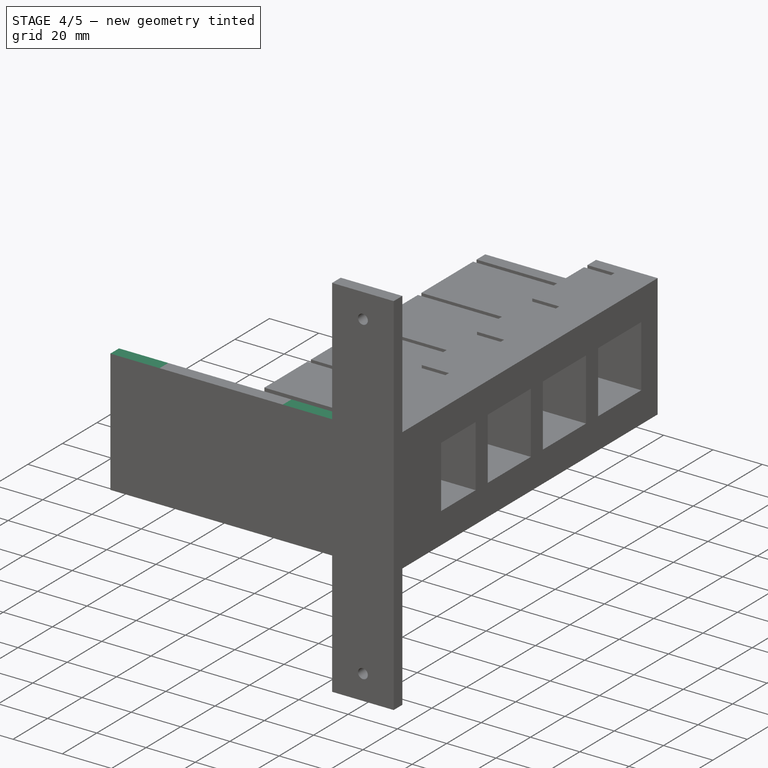
[diagram: stage 4 of 5 — iso view after this stage's code; geometry added in this stage tinted green]
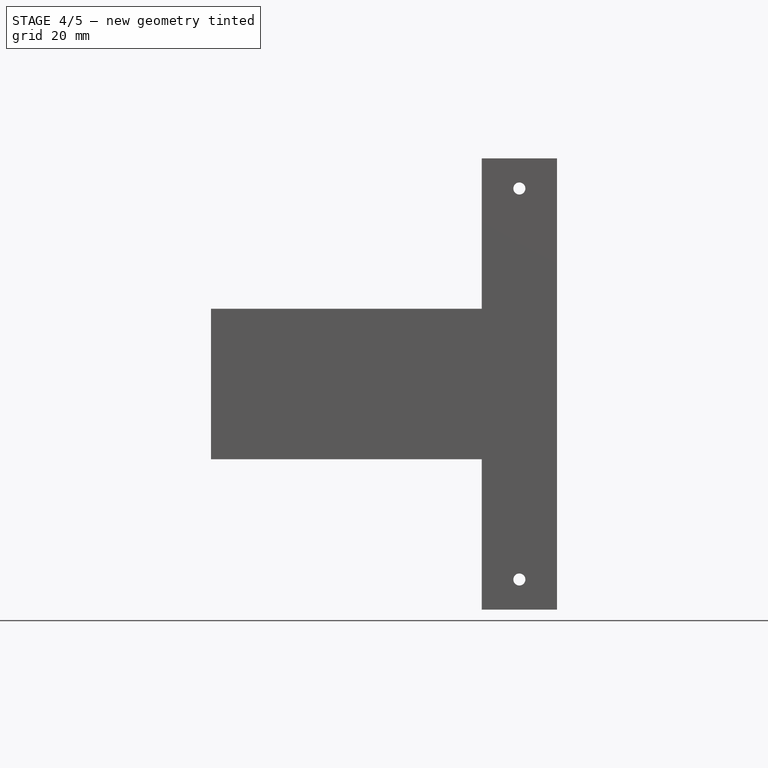
[diagram: stage 4 of 5 — front view after this stage's code; geometry added in this stage tinted green]
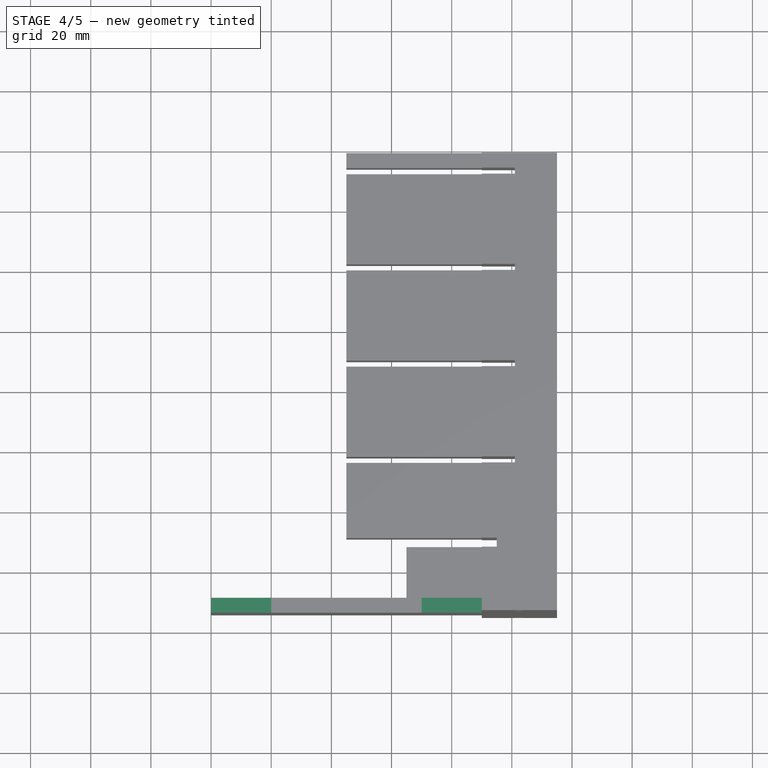
[diagram: stage 4 of 5 — top view after this stage's code; geometry added in this stage tinted green]
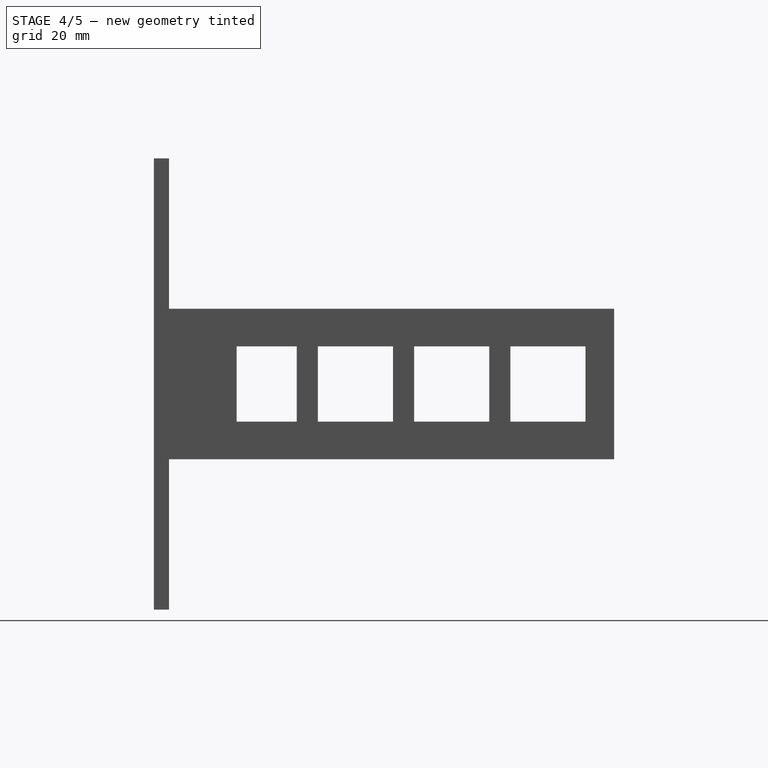
[diagram: stage 4 of 5 — right view after this stage's code; geometry added in this stage tinted green]
FEATURE [Sketcher::SketchObject] Sketch012
  FullyConstrained = true
  MapMode = 5
  Placement = pos=(0,10,0) rot=(0,0.707107,0.707107;3.14159rad)
  Support = -> [Pocket007]
  sketch-geometry (4):
    g0: LineSegment StartX=40 StartY=90 StartZ=0 EndX=105 EndY=90 EndZ=0
    g1: LineSegment StartX=105 StartY=90 StartZ=0 EndX=105 EndY=-60 EndZ=0
    g2: LineSegment StartX=105 StartY=-60 StartZ=0 EndX=40 EndY=-60 EndZ=0
    g3: LineSegment StartX=40 StartY=-60 StartZ=0 EndX=40 EndY=90 EndZ=0
  constraints (12):
    c: Coincident(g0,g1)
    c: Coincident(g1,g2)
    c: Coincident(g2,g3)
    c: Coincident(g3,g0)
    c: Horizontal(g0)
    c: Horizontal(g2)
    c: Vertical(g1)
    c: Vertical(g3)
    c: Distance(g1) = 150
    c: Distance(g2) = 65
    c: Distance(g-1,g3) = 40
    c: Distance(g-1,g2) = 60
FEATURE [PartDesign::Pocket] Pocket008
  BaseFeature = -> Pocket007
  Length = 5
  Length2 = 100
  Profile = -> Sketch012
  Type = 0
FEATURE [Sketcher::SketchObject] Sketch013
  FullyConstrained = true
  MapMode = 5
  Placement = pos=(30,0,0) rot=(0.57735,-0.57735,-0.57735;2.0944rad)
  Support = -> [Pocket008]
  sketch-geometry (8):
    g0: LineSegment StartX=-10 StartY=-10 StartZ=0 EndX=-5 EndY=-10 EndZ=0
    g1: LineSegment StartX=-5 StartY=-10 StartZ=0 EndX=-5 EndY=-60 EndZ=0
    g2: LineSegment StartX=-5 StartY=-60 StartZ=0 EndX=-10 EndY=-60 EndZ=0
    g3: LineSegment StartX=-10 StartY=-60 StartZ=0 EndX=-10 EndY=-10 EndZ=0
    g4: LineSegment StartX=-10 StartY=90 StartZ=0 EndX=-5 EndY=90 EndZ=0
    g5: LineSegment StartX=-5 StartY=90 StartZ=0 EndX=-5 EndY=40 EndZ=0
    g6: LineSegment StartX=-5 StartY=40 StartZ=0 EndX=-10 EndY=40 EndZ=0
    g7: LineSegment StartX=-10 StartY=40 StartZ=0 EndX=-10 EndY=90 EndZ=0
  constraints (24):
    c: Coincident(g0,g1)
    c: Coincident(g1,g2)
    c: Coincident(g2,g3)
    c: Coincident(g3,g0)
    c: Horizontal(g0)
    c: Horizontal(g2)
    c: Vertical(g1)
    c: Vertical(g3)
    c: DistanceX(g2,g2) = 5
    c: Distance(g1) = 50
    c: Distance(g-1,g1) = 5
    c: Distance(g-1,g2) = 60
    c: Coincident(g4,g5)
    c: Coincident(g5,g6)
    c: Coincident(g6,g7)
    c: Coincident(g7,g4)
    c: Horizontal(g4)
    c: Horizontal(g6)
    c: Vertical(g5)
    c: Vertical(g7)
    c: Distance(g-1,g4) = 90
    c: Distance(g-1,g5) = 5
    c: DistanceY(g5,g5) = 50
    c: Distance(g4) = 5
FEATURE [PartDesign::Pocket] Pocket009
  BaseFeature = -> Pocket008
  Length = 20
  Length2 = 100
  Profile = -> Sketch013
  Type = 0
FEATURE [Sketcher::SketchObject] Sketch014
  FullyConstrained = true
  MapMode = 5
  Placement = pos=(0,5,0) rot=(1,0,0;1.5708rad)
  Support = -> [Pocket009]
  sketch-geometry (8):
    g0: LineSegment StartX=-20 StartY=-10 StartZ=0 EndX=-40 EndY=-10 EndZ=0
    g1: LineSegment StartX=-40 StartY=-10 StartZ=0 EndX=-40 EndY=-60 EndZ=0
    g2: LineSegment StartX=-40 StartY=-60 StartZ=0 EndX=-20 EndY=-60 EndZ=0
    g3: LineSegment StartX=-20 StartY=-60 StartZ=0 EndX=-20 EndY=-10 EndZ=0
    g4: LineSegment StartX=-40 StartY=90 StartZ=0 EndX=-20 EndY=90 EndZ=0
    g5: LineSegment StartX=-20 StartY=90 StartZ=0 EndX=-20 EndY=40 EndZ=0
    g6: LineSegment StartX=-20 StartY=40 StartZ=0 EndX=-40 EndY=40 EndZ=0
    g7: LineSegment StartX=-40 StartY=40 StartZ=0 EndX=-40 EndY=90 EndZ=0
  constraints (24):
    c: Coincident(g0,g1)
    c: Coincident(g1,g2)
    c: Coincident(g2,g3)
    c: Coincident(g3,g0)
    c: Horizontal(g0)
    c: Horizontal(g2)
    c: Vertical(g1)
    c: Vertical(g3)
    c: Coincident(g4,g5)
    c: Coincident(g5,g6)
    c: Coincident(g6,g7)
    c: Coincident(g7,g4)
    c: Horizontal(g4)
    c: Horizontal(g6)
    c: Vertical(g5)
    c: Vertical(g7)
    c: DistanceX(g4,g4) = 20
    c: DistanceY(g7,g7) = 50
    c: Distance(g-1,g6) = 40
    c: Distance(g-1,g5) = 20
    c: Distance(g-1,g0) = 10
    c: Distance(g-1,g3) = 20
    c: Equal(g6,g0)
    c: Equal(g5,g3)
FEATURE [PartDesign::Pocket] Pocket010
  BaseFeature = -> Pocket009
  Length = 5
  Length2 = 100
  Profile = -> Sketch014
  Type = 0
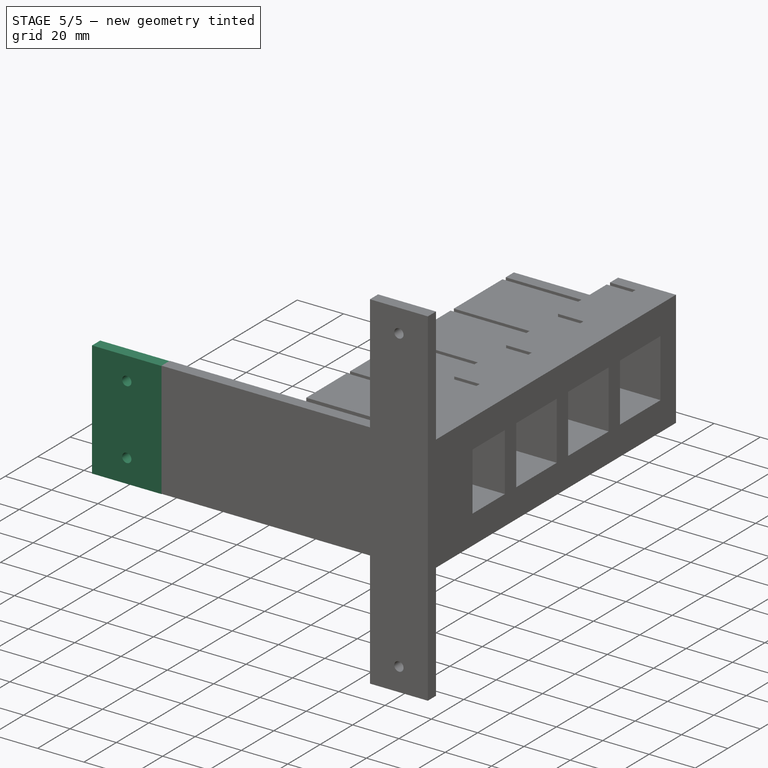
[diagram: stage 5 of 5 — iso view after this stage's code; geometry added in this stage tinted green]
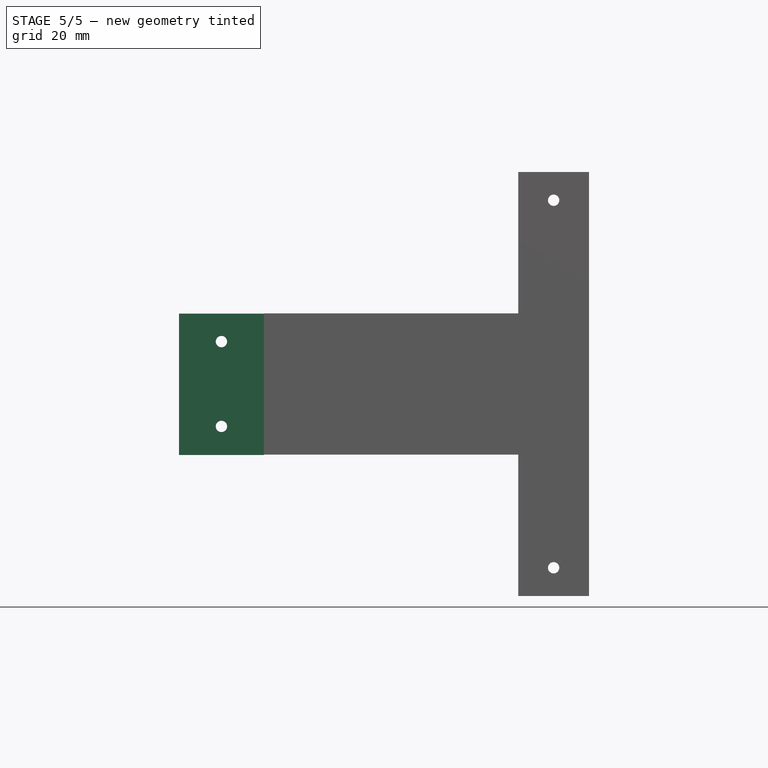
[diagram: stage 5 of 5 — front view after this stage's code; geometry added in this stage tinted green]
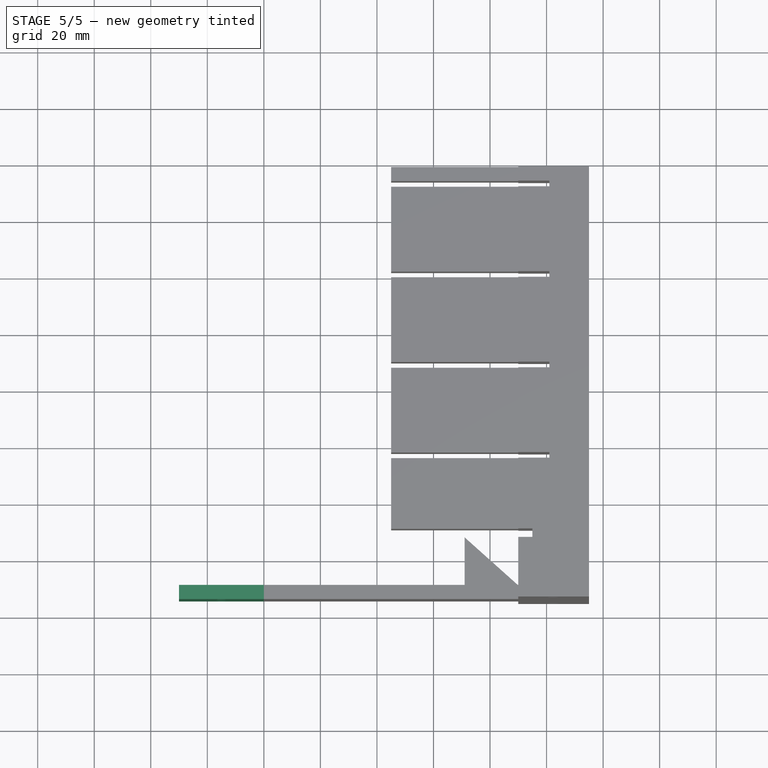
[diagram: stage 5 of 5 — top view after this stage's code; geometry added in this stage tinted green]
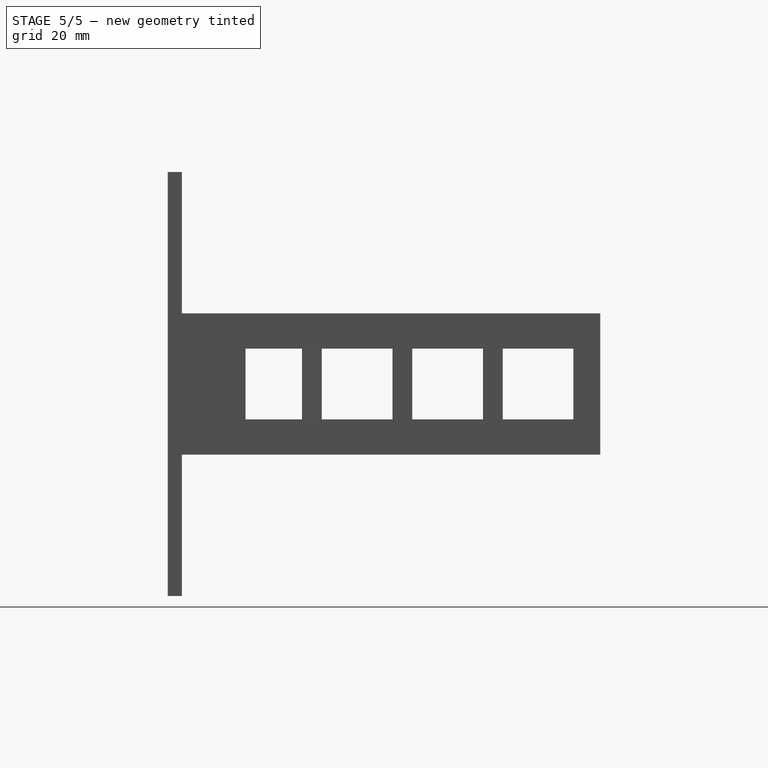
[diagram: stage 5 of 5 — right view after this stage's code; geometry added in this stage tinted green]
FEATURE [Sketcher::SketchObject] Sketch015
  FullyConstrained = true
  MapMode = 5
  Placement = pos=(50,0,0) rot=(0.57735,-0.57735,-0.57735;2.0944rad)
  Support = -> [Pocket010]
  sketch-geometry (4):
    g0: LineSegment StartX=-27 StartY=30 StartZ=0 EndX=-10 EndY=30 EndZ=0
    g1: LineSegment StartX=-10 StartY=30 StartZ=0 EndX=-10 EndY=0 EndZ=0
    g2: LineSegment StartX=-10 StartY=0 StartZ=0 EndX=-27 EndY=0 EndZ=0
    g3: LineSegment StartX=-27 StartY=0 StartZ=0 EndX=-27 EndY=30 EndZ=0
  constraints (12):
    c: Coincident(g0,g1)
    c: Coincident(g1,g2)
    c: Coincident(g2,g3)
    c: Coincident(g3,g0)
    c: Horizontal(g0)
    c: Horizontal(g2)
    c: Vertical(g1)
    c: Vertical(g3)
    c: PointOnObject(g1,g-1)
    c: DistanceX(g0,g0) = 17
    c: DistanceY(g3,g3) = 30
    c: Distance(g1,g-1) = 10
FEATURE [PartDesign::Pocket] Pocket011
  BaseFeature = -> Pocket010
  Length = 6
  Length2 = 100
  Profile = -> Sketch015
  Type = 0
FEATURE [Sketcher::SketchObject] Sketch016
  FullyConstrained = false
  MapMode = 5
  Placement = pos=(-40,0,0) rot=(0.57735,-0.57735,-0.57735;2.0944rad)
  Support = -> [Pocket011]
  sketch-geometry (4):
    g0: LineSegment StartX=-10 StartY=39.8797 StartZ=0 EndX=-5 EndY=39.8797 EndZ=0
    g1: LineSegment StartX=-5 StartY=39.8797 StartZ=0 EndX=-5 EndY=-10.1203 EndZ=0
    g2: LineSegment StartX=-5 StartY=-10.1203 StartZ=0 EndX=-10 EndY=-10.1203 EndZ=0
    g3: LineSegment StartX=-10 StartY=-10.1203 StartZ=0 EndX=-10 EndY=39.8797 EndZ=0
  constraints (11):
    c: Coincident(g0,g1)
    c: Coincident(g1,g2)
    c: Coincident(g2,g3)
    c: Coincident(g3,g0)
    c: Horizontal(g0)
    c: Horizontal(g2)
    c: Vertical(g1)
    c: Vertical(g3)
    c: DistanceX(g0,g0) = 5
    c: DistanceY(g3,g3) = 50
    c: Distance(g-1,g1) = 5
FEATURE [PartDesign::Pad] Pad003
  BaseFeature = -> Pocket011
  Direction = (1,1,1)
  Length = 30
  Length2 = 100
  Profile = -> Sketch016
  Type = 0
FEATURE [Sketcher::SketchObject] Sketch017
  FullyConstrained = true
  MapMode = 5
  Placement = pos=(0,10,0) rot=(0,0.707107,0.707107;3.14159rad)
  Support = -> [Pad003]
  sketch-geometry (4):
    g0: Circle CenterX=55 CenterY=30 CenterZ=0 NormalX=0 NormalY=0 NormalZ=1 AngleXU=0 Radius=2
    g1: Circle CenterX=55 CenterY=-4e-16 CenterZ=0 NormalX=0 NormalY=0 NormalZ=1 AngleXU=0 Radius=2
    g2: LineSegment StartX=0 StartY=-10 StartZ=0 EndX=70 EndY=-10 EndZ=0
    g3: LineSegment StartX=0 StartY=40 StartZ=0 EndX=70 EndY=40 EndZ=0
  constraints (14):
    c: Distance(g0,g-2) = 55
    c: Distance(g1,g-2) = 55
    c: PointOnObject(g2,g-2)
    c: Horizontal(g2)
    c: Distance(g-1,g2) = 10
    c: DistanceX(g2,g2) = 70
    c: Distance(g1,g2) = 10
    c: PointOnObject(g3,g-2)
    c: Horizontal(g3)
    c: Equal(g2,g3)
    c: Distance(g2,g3) = 50
    c: Distance(g0,g3) = 10
    c: Diameter(g0) = 4
    c: Diameter(g1) = 4
FEATURE [PartDesign::Pocket] Pocket012
  BaseFeature = -> Pad003
  Length = 5
  Length2 = 100
  Profile = -> Sketch017
  Type = 0
FEATURE [Sketcher::SketchObject] Sketch018
  FullyConstrained = true
  MapMode = 5
  Placement = pos=(0,0,30) rot=(0,0,1;0rad)
  Support = -> [Pocket012]
  sketch-geometry (4):
    g0: LineSegment StartX=25 StartY=27 StartZ=0 EndX=31 EndY=27 EndZ=0
    g1: LineSegment StartX=31 StartY=27 StartZ=0 EndX=31 EndY=10 EndZ=0
    g2: LineSegment StartX=31 StartY=10 StartZ=0 EndX=25 EndY=10 EndZ=0
    g3: LineSegment StartX=25 StartY=10 StartZ=0 EndX=25 EndY=27 EndZ=0
  constraints (12):
    c: Coincident(g0,g1)
    c: Coincident(g1,g2)
    c: Coincident(g2,g3)
    c: Coincident(g3,g0)
    c: Horizontal(g0)
    c: Horizontal(g2)
    c: Vertical(g1)
    c: Vertical(g3)
    c: DistanceX(g2,g2) = 6
    c: Distance(g-1,g3) = 25
    c: DistanceY(g1,g1) = 17
    c: Distance(g-1,g2) = 10
FEATURE [PartDesign::Pocket] Pocket013
  BaseFeature = -> Pocket012
  Length = 30
  Length2 = 100
  Profile = -> Sketch018
  Type = 0
FEATURE [PartDesign::Body] Body
  Group = -> [Sketch,Pad,Sketch001,Pad001,Sketch002,Pad002,Sketch003,Pocket,Sketch004,Sketch006,Sketch007,Pocket001,Pocket002,Pocket003,Sketch008,Pocket004,Sketch009,Pocket005,Sketch010,Pocket006,Sketch011,Pocket007,Sketch012,Pocket008,Sketch013,Pocket009,Sketch014,Pocket010,Sketch015,Pocket011,Sketch016,Pad003,Sketch017,Pocket012,Sketch018,Pocket013]
  Origin = -> Origin
  Tip = -> Pocket013
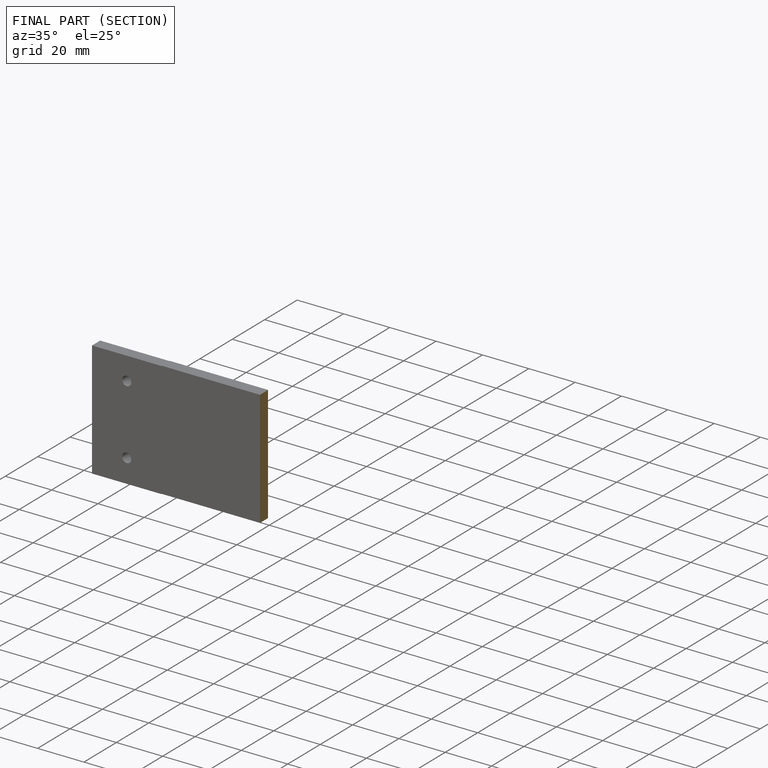
[diagram: finished part — half-section view (interior)]
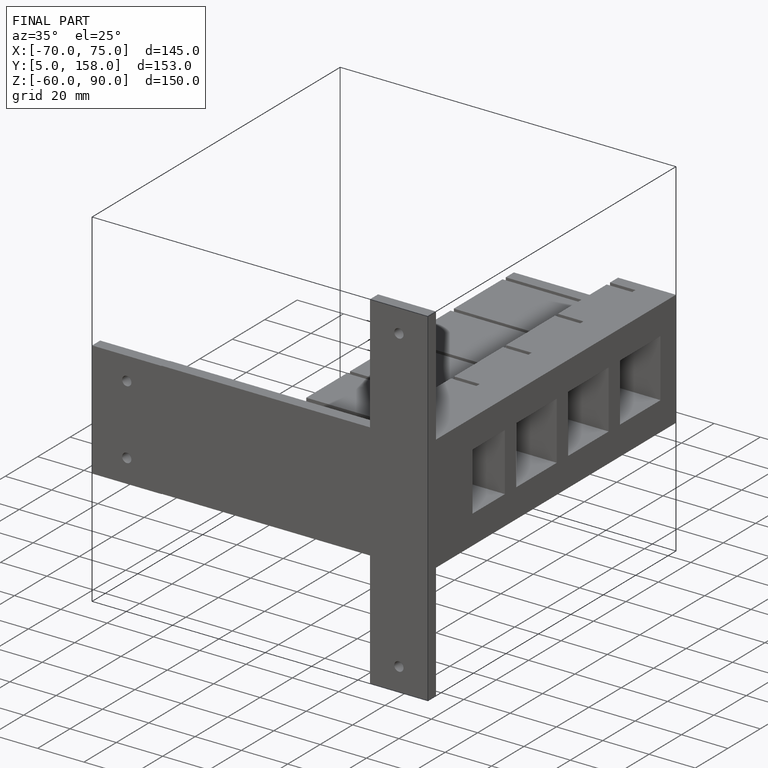
[diagram: finished part — iso view with bounding-box wireframe]
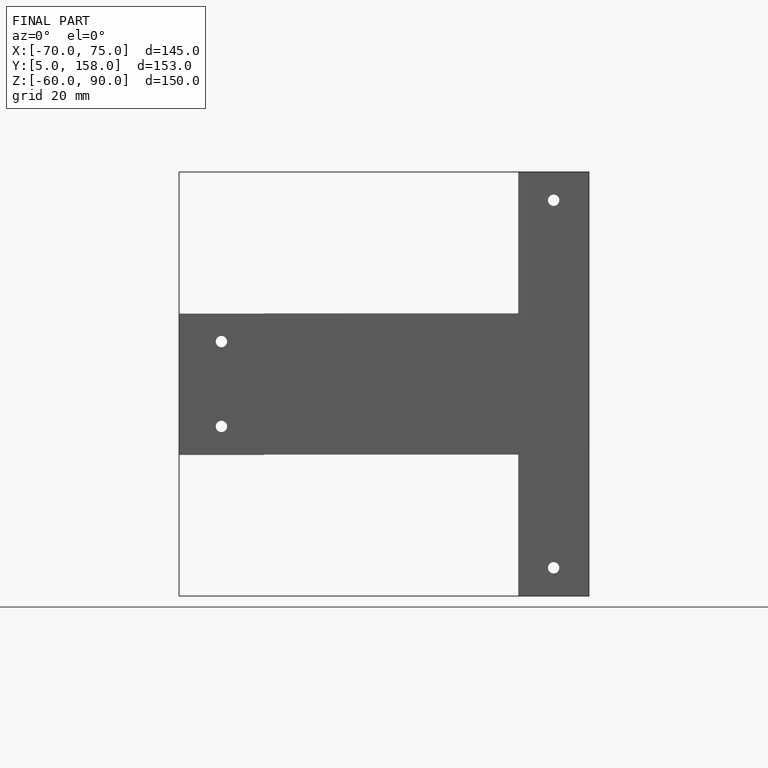
[diagram: finished part — front view with bounding-box wireframe]
